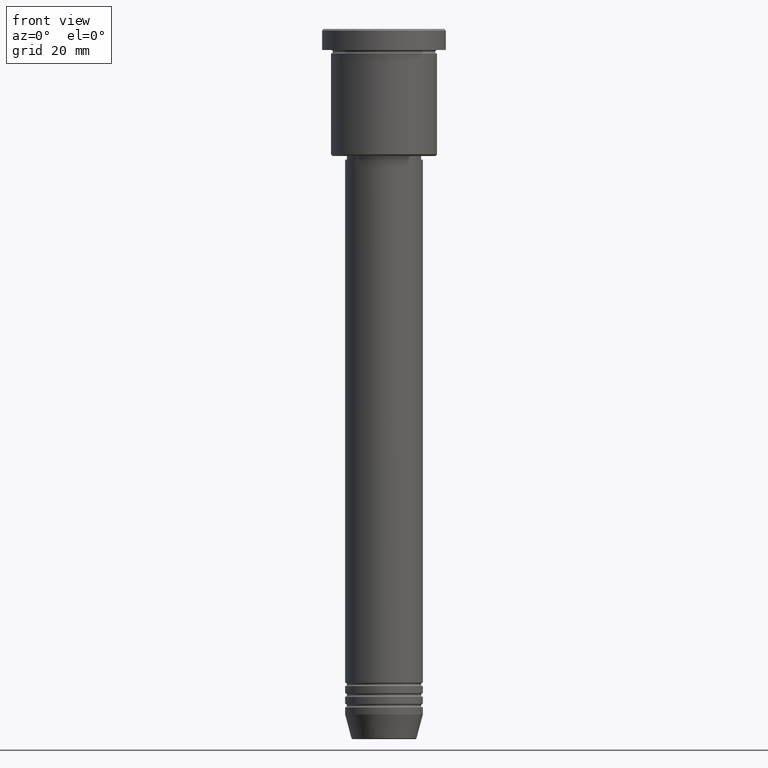
[diagram: clean part render]
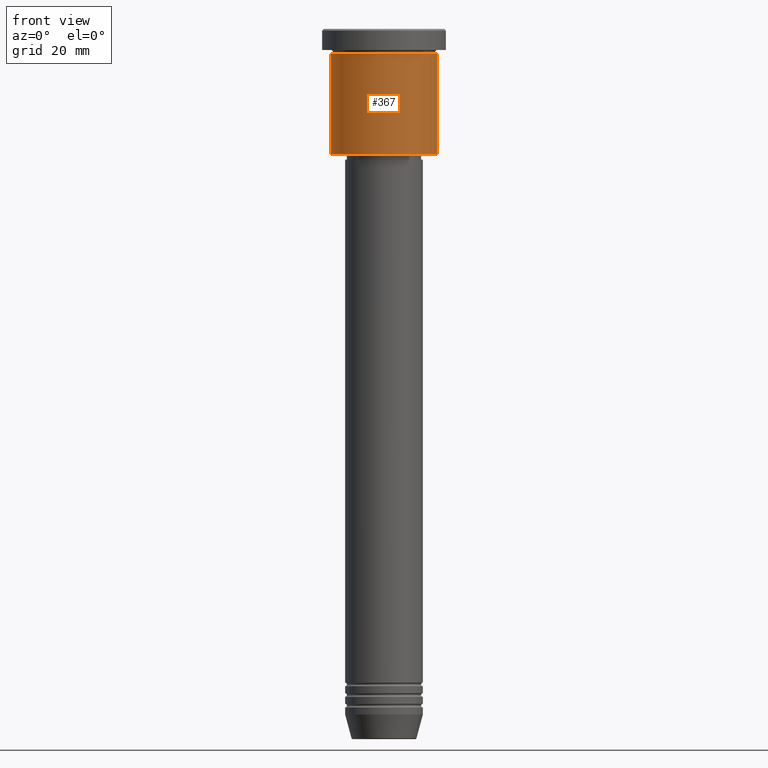
[diagram: same view with one face highlighted and labeled with its STEP entity id]
A machine part, front view. The second image highlights one B-rep face of the part: STEP entity #367.
In plain terms, the highlighted cylindrical surface (partial cylindrical patch) has radius 15 mm, axis along (-0, -0, 1).
Its self-contained STEP definition (entity closure, byte-faithful):
#8 = ORIENTED_EDGE ( 'NONE', *, *, #809, .F. ) ;
#11 = CIRCLE ( 'NONE', #1001, 15.00000000000000000 ) ;
#35 = EDGE_LOOP ( 'NONE', ( #8, #285, #704, #1092 ) ) ;
#75 = CYLINDRICAL_SURFACE ( 'NONE', #416, 15.00000000000000000 ) ;
#84 = VECTOR ( 'NONE', #564, 1000.000000000000000 ) ;
#102 = EDGE_CURVE ( 'NONE', #873, #158, #11, .T. ) ;
#115 = CARTESIAN_POINT ( 'NONE',  ( 15.00000000000000000, 0.000000000000000000, -35.50000000000004263 ) ) ;
#158 = VERTEX_POINT ( 'NONE', #115 ) ;
#179 = LINE ( 'NONE', #990, #403 ) ;
#188 = CARTESIAN_POINT ( 'NONE',  ( 0.000000000000000000, 0.000000000000000000, -6.999999999999995559 ) ) ;
#254 = DIRECTION ( 'NONE',  ( -0.000000000000000000, -0.000000000000000000, 1.000000000000000000 ) ) ;
#284 = FACE_OUTER_BOUND ( 'NONE', #35, .T. ) ;
#285 = ORIENTED_EDGE ( 'NONE', *, *, #102, .T. ) ;
#361 = CIRCLE ( 'NONE', #693, 15.00000000000000000 ) ;
#367 = ADVANCED_FACE ( 'NONE', ( #284 ), #75, .T. ) ;
#403 = VECTOR ( 'NONE', #254, 1000.000000000000000 ) ;
#416 = AXIS2_PLACEMENT_3D ( 'NONE', #1011, #448, #617 ) ;
#448 = DIRECTION ( 'NONE',  ( -0.000000000000000000, -0.000000000000000000, 1.000000000000000000 ) ) ;
#455 = DIRECTION ( 'NONE',  ( -0.000000000000000000, -0.000000000000000000, 1.000000000000000000 ) ) ;
#465 = CARTESIAN_POINT ( 'NONE',  ( 15.00000000000000000, 0.000000000000000000, 0.000000000000000000 ) ) ;
#515 = EDGE_CURVE ( 'NONE', #158, #1008, #926, .T. ) ;
#520 = VERTEX_POINT ( 'NONE', #1029 ) ;
#564 = DIRECTION ( 'NONE',  ( -0.000000000000000000, -0.000000000000000000, 1.000000000000000000 ) ) ;
#617 = DIRECTION ( 'NONE',  ( 1.000000000000000000, 0.000000000000000000, 0.000000000000000000 ) ) ;
#629 = DIRECTION ( 'NONE',  ( 1.000000000000000000, 0.000000000000000000, 0.000000000000000000 ) ) ;
#671 = DIRECTION ( 'NONE',  ( -0.000000000000000000, -0.000000000000000000, 1.000000000000000000 ) ) ;
#693 = AXIS2_PLACEMENT_3D ( 'NONE', #188, #455, #629 ) ;
#704 = ORIENTED_EDGE ( 'NONE', *, *, #515, .T. ) ;
#744 = CARTESIAN_POINT ( 'NONE',  ( 0.000000000000000000, 0.000000000000000000, -35.50000000000004263 ) ) ;
#809 = EDGE_CURVE ( 'NONE', #873, #520, #179, .T. ) ;
#856 = EDGE_CURVE ( 'NONE', #520, #1008, #361, .T. ) ;
#873 = VERTEX_POINT ( 'NONE', #1182 ) ;
#926 = LINE ( 'NONE', #465, #84 ) ;
#942 = DIRECTION ( 'NONE',  ( -1.000000000000000000, 0.000000000000000000, 0.000000000000000000 ) ) ;
#990 = CARTESIAN_POINT ( 'NONE',  ( -15.00000000000000000, 1.836970198721029589E-15, 0.000000000000000000 ) ) ;
#1001 = AXIS2_PLACEMENT_3D ( 'NONE', #744, #671, #942 ) ;
#1008 = VERTEX_POINT ( 'NONE', #1019 ) ;
#1011 = CARTESIAN_POINT ( 'NONE',  ( 0.000000000000000000, 0.000000000000000000, 0.000000000000000000 ) ) ;
#1019 = CARTESIAN_POINT ( 'NONE',  ( 15.00000000000000000, 0.000000000000000000, -6.999999999999995559 ) ) ;
#1029 = CARTESIAN_POINT ( 'NONE',  ( -15.00000000000000000, 1.836970198721029589E-15, -6.999999999999995559 ) ) ;
#1092 = ORIENTED_EDGE ( 'NONE', *, *, #856, .F. ) ;
#1182 = CARTESIAN_POINT ( 'NONE',  ( -15.00000000000000000, 1.836970198721029589E-15, -35.50000000000004263 ) ) ;